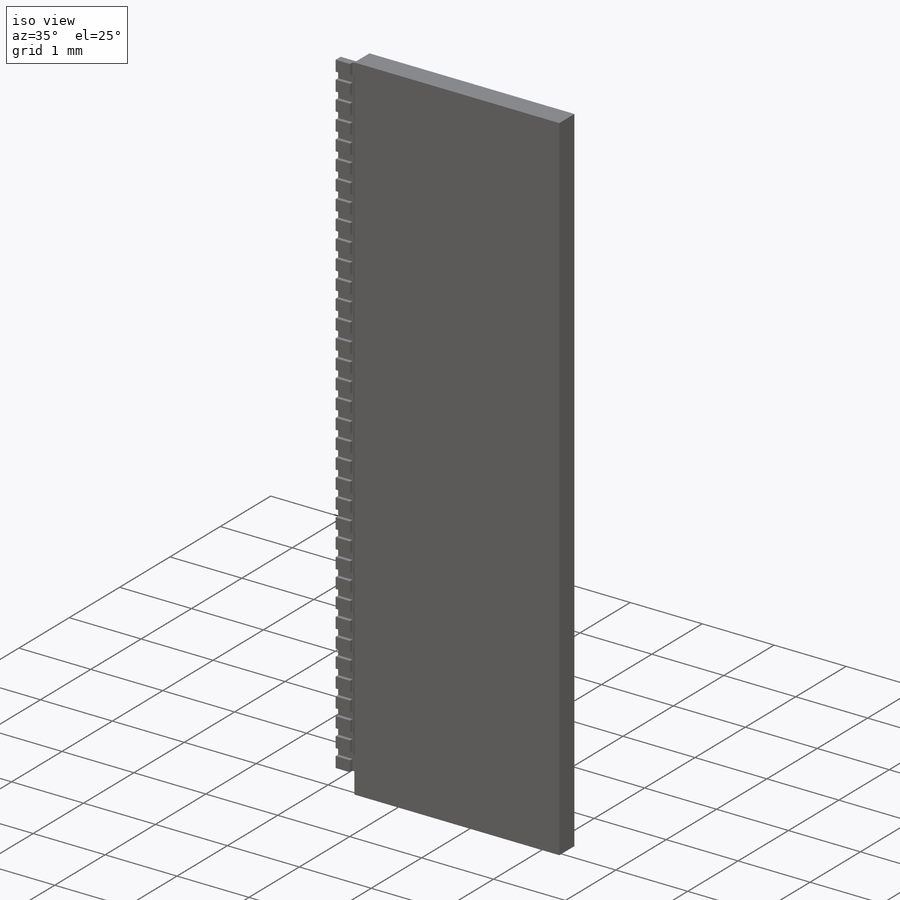
[diagram: iso view]
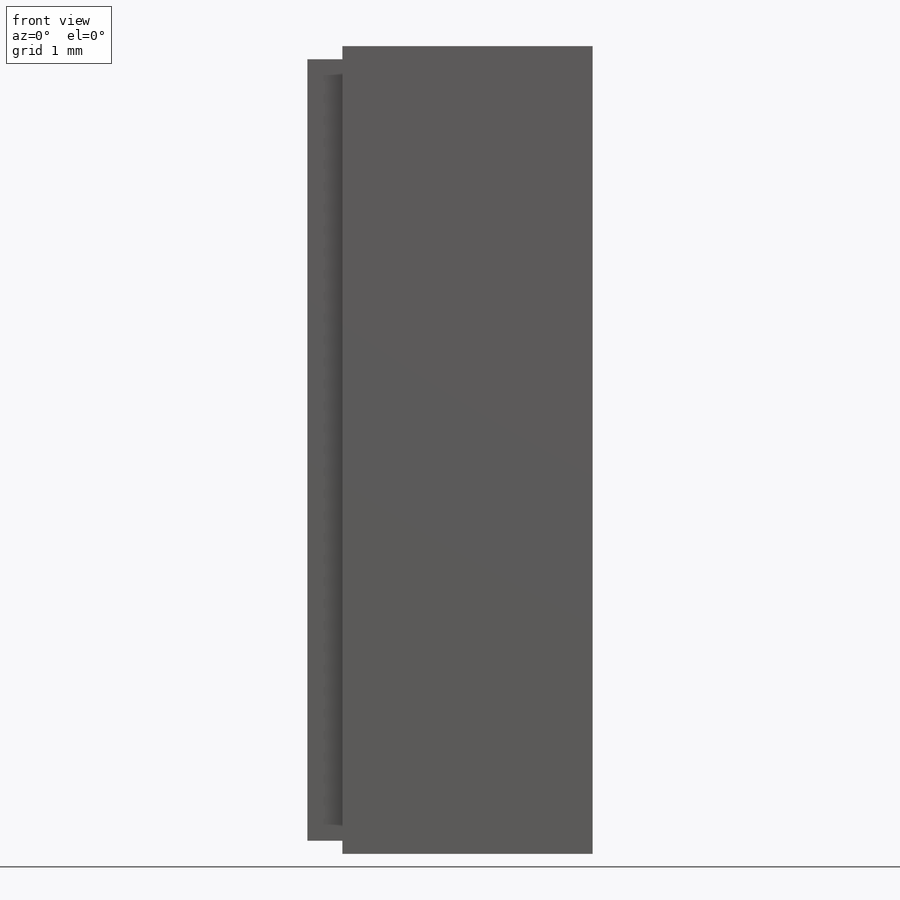
[diagram: front view]
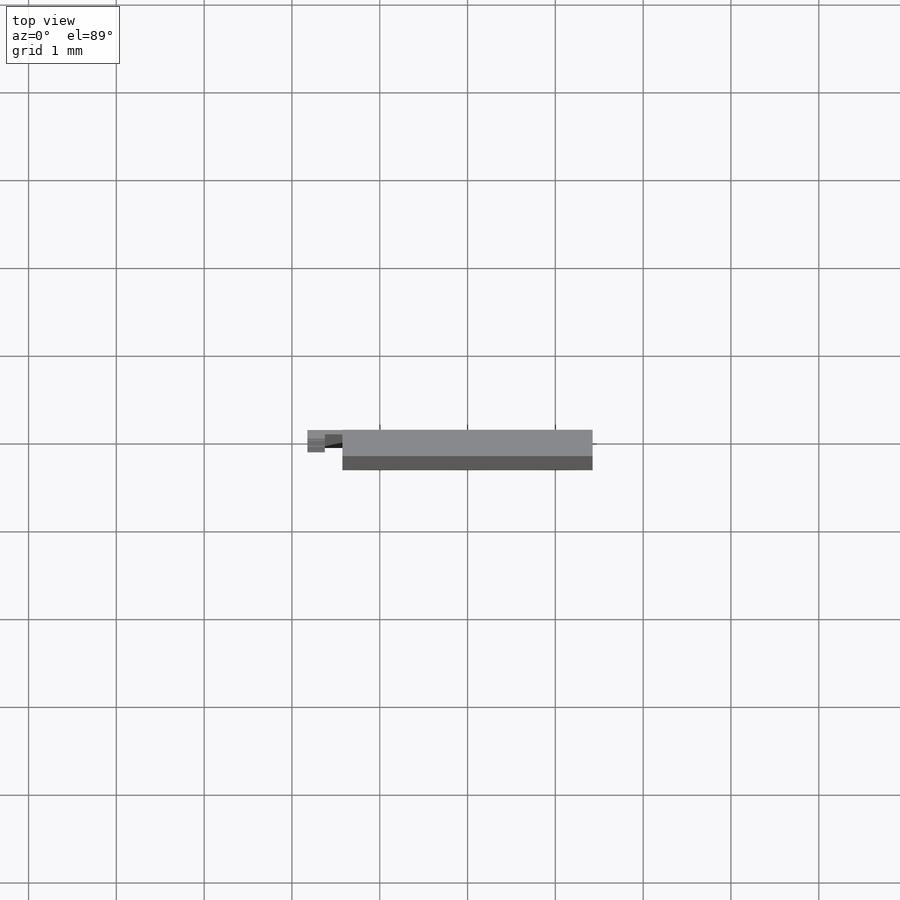
[diagram: top view]
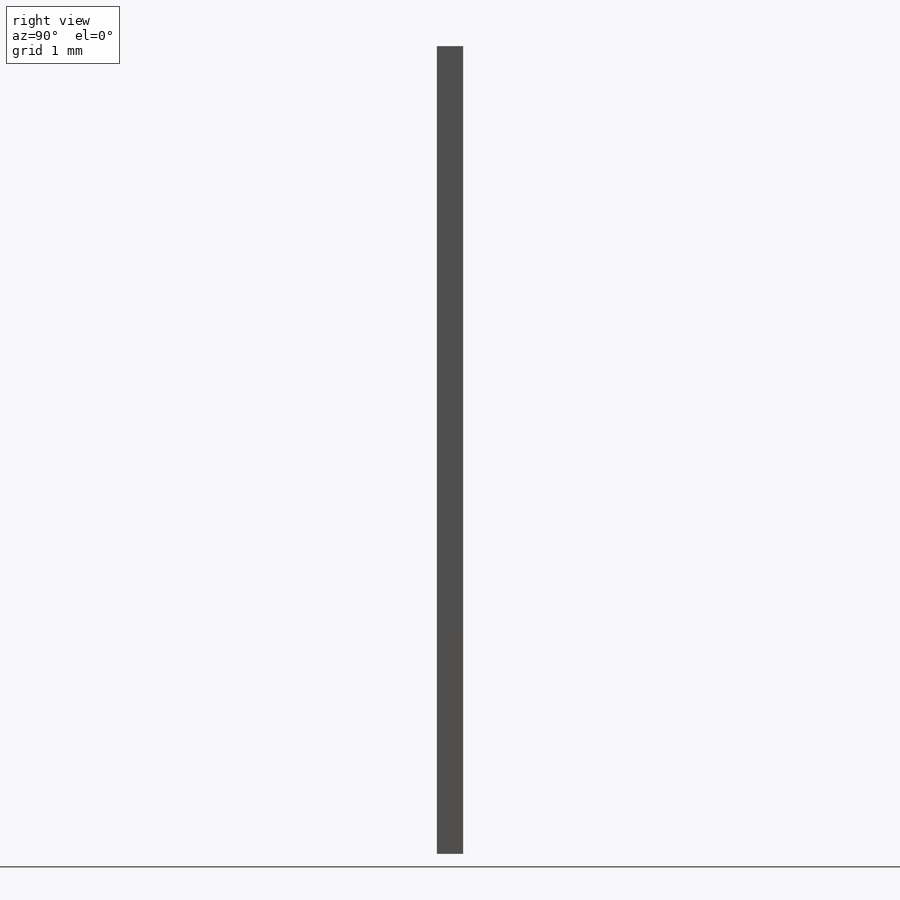
[diagram: right view]
SOLIDWORKS PART (.sldprt)
format: sldprt  version: not decoded by parser v0  size: 293,888 bytes
history: native  units: mm
features: sketch x4, plane x3, extrude x3, material x1, cut_extrude x1, pattern_linear x1 (+13 scaffold rows collapsed)
feature tree (26):
  scaffold x13  (default folders/planes/origin — collapsed)
  material  "Material <not specified>"
  plane  "Plane1"
  plane  "Plane2"
  plane  "Plane3"
  sketch  "Sketch1"  dims[D1=2.85mm D2=9.2mm]
  extrude  "Extrude1"  Depth=0.3mm
  sketch  "Sketch2"  dims[D1=0.4mm D2=0.15mm D3=0.15mm]
  extrude  "Extrude2"  Depth=0.05mm
  sketch  "Sketch3"  dims[D1=0.2mm]
  extrude  "Extrude3"  Depth=0.05mm
  sketch  "Sketch4"  dims[D1=0.1mm D2=0.15mm]
  cut_extrude  "Extrude4"  [1 undecoded]
  pattern_linear  "LPattern1"  Count1=35 Count2=1 Spacing1=0.25mm Spacing2=1mm
decode coverage: 8 of 9 modeling features carry decoded parameters
note: 1 parameter value undecoded
note: suppression state not decoded; provenance and decode notes live in map.json
